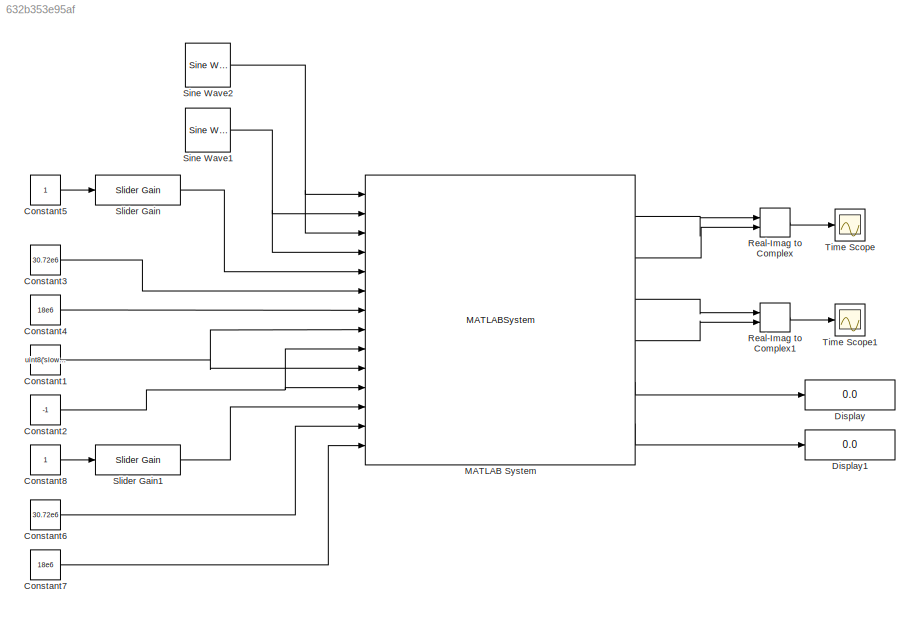
MODEL slx_632b353e95af
KIND model
CONFIG AbsTol = auto
CONFIG EnableMultiTasking = on
CONFIG FixedStep = auto
CONFIG MaxStep = auto
CONFIG MinStep = auto
CONFIG RelTol = 1e-3
CONFIG SampleTimeConstraint = Unconstrained
CONFIG Solver = ode45
CONFIG SolverName = ode45
CONFIG StartTime = 0.0
CONFIG StopTime = Inf
BLOCK [Constant] Constant1
  SampleTime = -1
  Value = uint8('slow_attack')
BLOCK [Constant] Constant2
  SampleTime = -1
  Value = -1
BLOCK [Constant] Constant3
  SampleTime = -1
  Value = 30.72e6
BLOCK [Constant] Constant4
  SampleTime = -1
  Value = 18e6
BLOCK [Constant] Constant5
  SampleTime = -1
BLOCK [Constant] Constant6
  SampleTime = -1
  Value = 30.72e6
BLOCK [Constant] Constant7
  SampleTime = -1
  Value = 18e6
BLOCK [Constant] Constant8
  SampleTime = -1
BLOCK [Display] Display
  Decimation = 1
  Ports = [1]
BLOCK [Display] Display1
  Decimation = 1
  Ports = [1]
BLOCK [MATLABSystem] MATLAB System
  DialogController = sysobjdialog.BlockDynDialog
  MaskDisplay = disp('ad9361');\nport_label('input',1,'DATA_IN1');\nport_label('input',2,'DATA_IN2');\nport_label('input',3,'DATA_IN3');\nport_label('input',4,'DATA_IN4');\nport_label('input',5,'RX_LO_FREQ');\nport_label('input',6,'RX_SAMPLING_FREQ');\nport_label('input',7,'RX_RF_BANDWIDTH');\nport_label('input',8,'RX1_GAIN_MODE');\nport_label('input',9,'RX1_GAIN');\nport_label('input',10,'RX2_GAIN_MODE');\nport_label('inpu...<+354ch>
  MaskType = iio_sys_obj
  Ports = [14, 6]
  SimulateUsing = Interpreted execution
  System = iio_sys_obj
  dev_name = ad9361
  in_ch_no = 4
  in_ch_size = 32768
  ip_address = 192.168.3.2
  out_ch_no = 4
  out_ch_size = 8192
BLOCK [RealImagToComplex] Real-Imag to Complex
  Ports = [2, 1]
BLOCK [RealImagToComplex] Real-Imag to Complex1
  Ports = [2, 1]
BLOCK [Reference] Sine Wave1  REF=dspsrcs4/Sine Wave
  Ports = [0, 1]
  SourceBlock = dspsrcs4/Sine Wave
  SourceProductBaseCode = DS
  SourceProductName = DSP System Toolbox
  SourceType = Sine Wave
BLOCK [Reference] Sine Wave2  REF=dspsrcs4/Sine Wave
  Ports = [0, 1]
  SourceBlock = dspsrcs4/Sine Wave
  SourceProductBaseCode = DS
  SourceProductName = DSP System Toolbox
  SourceType = Sine Wave
BLOCK [Reference] Slider Gain  REF=simulink/Math
Operations/Slider
Gain
  Ports = [1, 1]
  SourceBlock = simulink/Math\nOperations/Slider\nGain
  SourceProductBaseCode = SL
  SourceProductName = Simulink
  SourceType = Slider Gain
BLOCK [Reference] Slider Gain1  REF=simulink/Math
Operations/Slider
Gain
  Ports = [1, 1]
  SourceBlock = simulink/Math\nOperations/Slider\nGain
  SourceProductBaseCode = SL
  SourceProductName = Simulink
  SourceType = Slider Gain
BLOCK [Scope] Time Scope
  DefaultConfigurationName = spbscopes.TimeScopeBlockCfg
  NumInputPorts = 1
  Ports = [1]
  ScopeSpecificationString = spbscopes.TimeScopeBlockCfg('CurrentConfiguration', extmgr.ConfigurationSet(extmgr.Configuration('Core','General UI',true),extmgr.Configuration('Core','Source UI',true),extmgr.Configuration('Sources','WiredSimulink',true,'PointsPerSignal',50000),extmgr.Configuration('Visuals','Time Domain',true),extmgr.Configuration('Tools','Plot Navigation',true),extmgr.Configuration('Tools','Measurements',true))...<+19ch>
  UserDataPersistent = on
BLOCK [Scope] Time Scope1
  DefaultConfigurationName = spbscopes.TimeScopeBlockCfg
  NumInputPorts = 1
  Ports = [1]
  ScopeSpecificationString = spbscopes.TimeScopeBlockCfg('CurrentConfiguration', extmgr.ConfigurationSet(extmgr.Configuration('Core','General UI',true),extmgr.Configuration('Core','Source UI',true),extmgr.Configuration('Sources','WiredSimulink',true,'PointsPerSignal',50000,'DataLoggingVariableName','ScopeData1'),extmgr.Configuration('Visuals','Time Domain',true),extmgr.Configuration('Tools','Plot Navigation',true),extmgr.Conf...<+58ch>
  UserDataPersistent = on
NET Constant1:1 -> MATLAB System:10, MATLAB System:8
NET Constant2:1 -> MATLAB System:11, MATLAB System:9
LINE Constant3:1 -> MATLAB System:6
LINE Constant4:1 -> MATLAB System:7
LINE Constant5:1 -> Slider Gain:1
LINE Constant6:1 -> MATLAB System:13
LINE Constant7:1 -> MATLAB System:14
LINE Constant8:1 -> Slider Gain1:1
LINE MATLAB System:1 -> Real-Imag to Complex:1
LINE MATLAB System:2 -> Real-Imag to Complex:2
LINE MATLAB System:3 -> Real-Imag to Complex1:1
LINE MATLAB System:4 -> Real-Imag to Complex1:2
LINE MATLAB System:5 -> Display:1
LINE MATLAB System:6 -> Display1:1
LINE Real-Imag to Complex1:1 -> Time Scope1:1
LINE Real-Imag to Complex:1 -> Time Scope:1
NET Sine Wave1:1 -> MATLAB System:2, MATLAB System:4
NET Sine Wave2:1 -> MATLAB System:1, MATLAB System:3
LINE Slider Gain1:1 -> MATLAB System:12
LINE Slider Gain:1 -> MATLAB System:5
note: NET lines group one-source signal fan-out (src -> all destinations, sorted); 1:1 wires keep LINE
